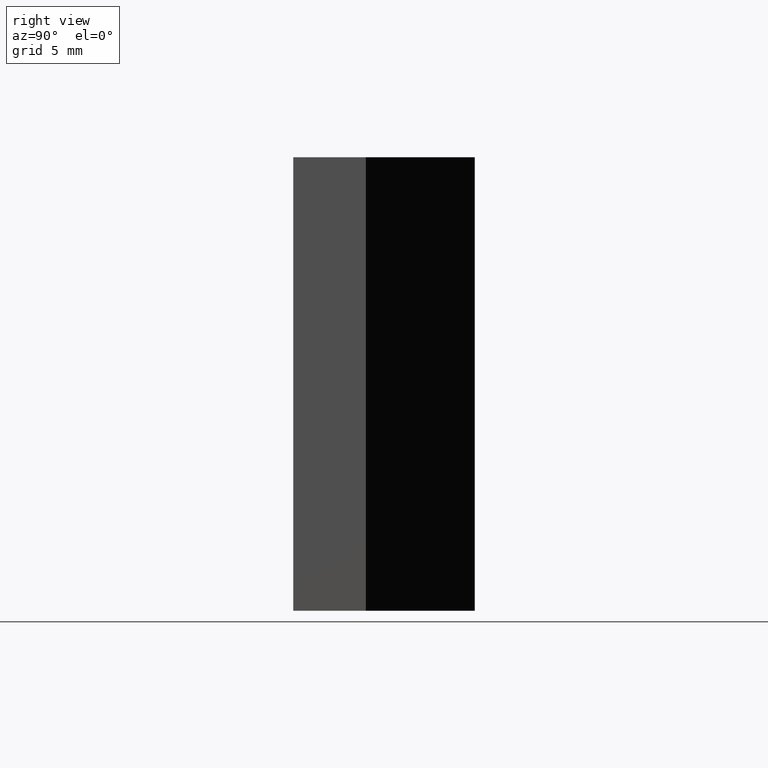
[diagram: clean part render]
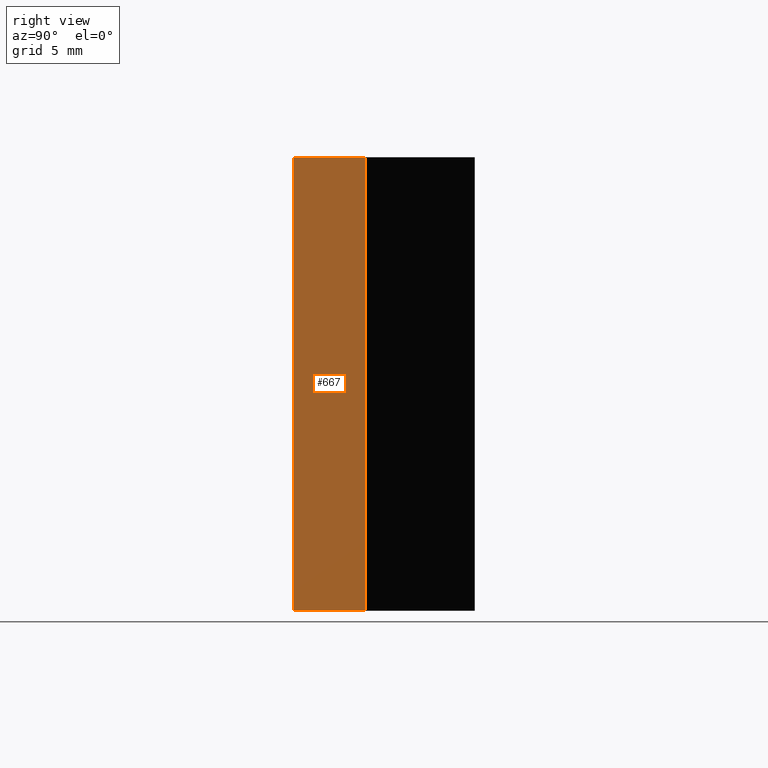
[diagram: same view with one face highlighted and labeled with its STEP entity id]
A machine part, right view. The second image highlights one B-rep face of the part: STEP entity #667.
In plain terms, the highlighted planar face has unit normal (1, 0, 0).
Its self-contained STEP definition (entity closure, byte-faithful):
#56=FACE_OUTER_BOUND('',#91,.T.);
#91=EDGE_LOOP('',(#511,#512,#513,#514,#515));
#146=LINE('',#1036,#231);
#151=LINE('',#1045,#236);
#155=LINE('',#1054,#240);
#159=LINE('',#1062,#244);
#160=LINE('',#1063,#245);
#231=VECTOR('',#850,10.);
#236=VECTOR('',#857,10.);
#240=VECTOR('',#865,10.);
#244=VECTOR('',#873,10.);
#245=VECTOR('',#874,10.);
#304=VERTEX_POINT('',#1024);
#308=VERTEX_POINT('',#1034);
#311=VERTEX_POINT('',#1043);
#314=VERTEX_POINT('',#1053);
#316=VERTEX_POINT('',#1061);
#376=EDGE_CURVE('',#304,#308,#146,.T.);
#381=EDGE_CURVE('',#308,#311,#151,.T.);
#385=EDGE_CURVE('',#314,#304,#155,.T.);
#389=EDGE_CURVE('',#316,#311,#159,.T.);
#390=EDGE_CURVE('',#316,#314,#160,.T.);
#511=ORIENTED_EDGE('',*,*,#381,.T.);
#512=ORIENTED_EDGE('',*,*,#389,.F.);
#513=ORIENTED_EDGE('',*,*,#390,.T.);
#514=ORIENTED_EDGE('',*,*,#385,.T.);
#515=ORIENTED_EDGE('',*,*,#376,.T.);
#635=PLANE('',#768);
#667=ADVANCED_FACE('',(#56),#635,.T.);
#768=AXIS2_PLACEMENT_3D('',#1060,#871,#872);
#850=DIRECTION('',(0.,0.,1.));
#857=DIRECTION('',(3.33066907387547E-15,-1.,0.));
#865=DIRECTION('',(0.,0.,1.));
#871=DIRECTION('center_axis',(1.,3.33066907387547E-15,0.));
#872=DIRECTION('ref_axis',(0.,0.,-1.));
#873=DIRECTION('',(0.,0.,1.));
#874=DIRECTION('',(-3.33066907387547E-15,1.,0.));
#1024=CARTESIAN_POINT('',(24.0066712911562,-6.,1.));
#1034=CARTESIAN_POINT('',(24.0066712911562,-6.,25.));
#1036=CARTESIAN_POINT('',(24.0066712911562,-6.,0.));
#1043=CARTESIAN_POINT('',(24.0066712911562,-10.,25.));
#1045=CARTESIAN_POINT('',(24.0066712911562,-10.,25.));
#1053=CARTESIAN_POINT('',(24.0066712911562,-6.,0.));
#1054=CARTESIAN_POINT('',(24.0066712911562,-6.,0.));
#1060=CARTESIAN_POINT('Origin',(24.0066712911562,-6.,0.));
#1061=CARTESIAN_POINT('',(24.0066712911562,-10.,0.));
#1062=CARTESIAN_POINT('',(24.0066712911562,-10.,0.));
#1063=CARTESIAN_POINT('',(24.0066712911562,-10.,0.));